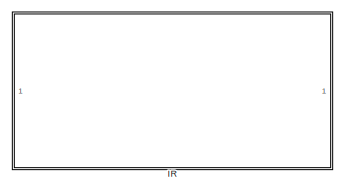
[diagram: root canvas - part 1/3, top center region]
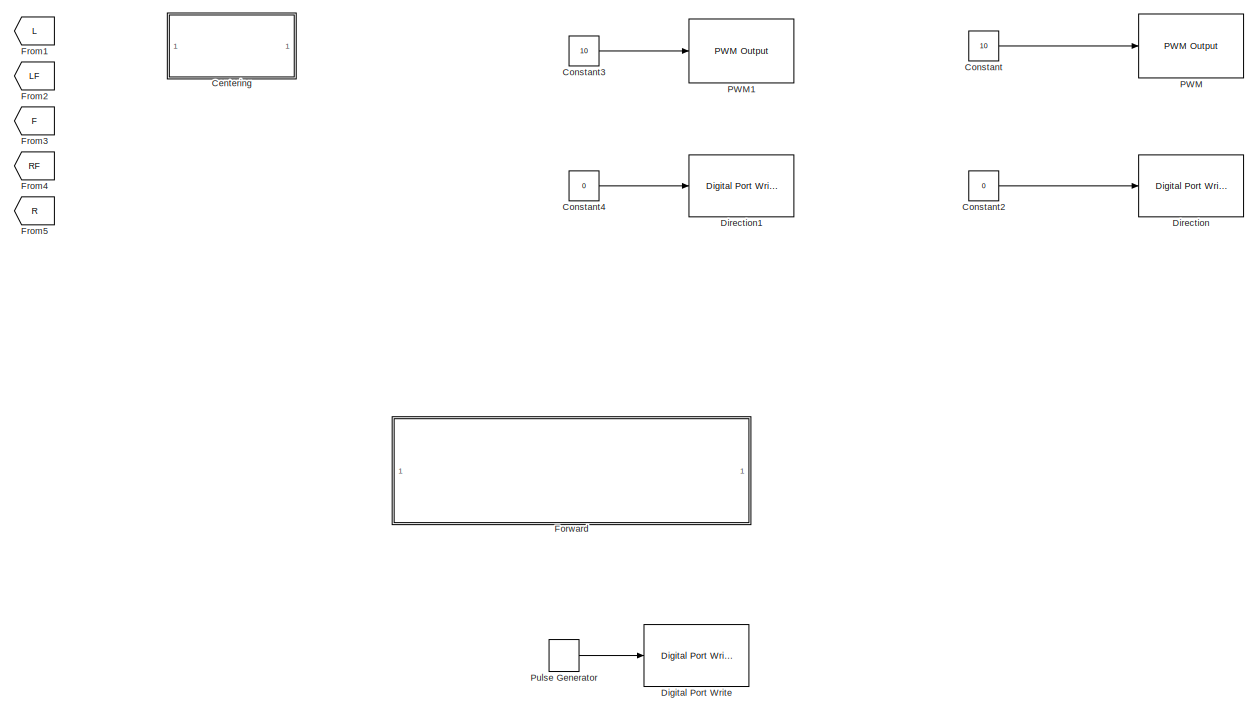
[diagram: root canvas - part 2/3, right side, full height]
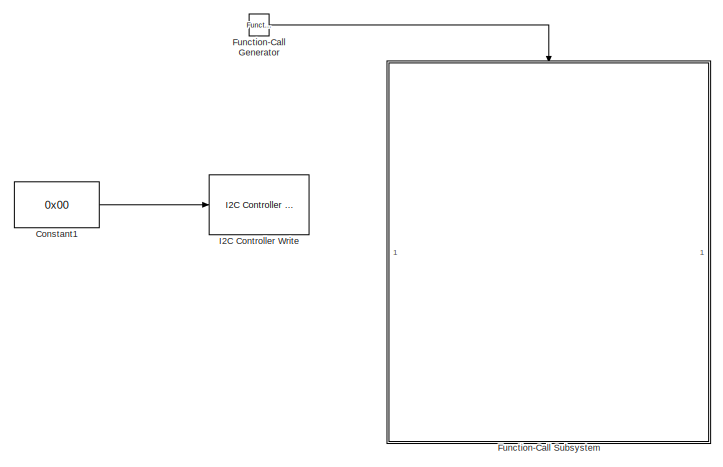
[diagram: root canvas - part 3/3, bottom left region]
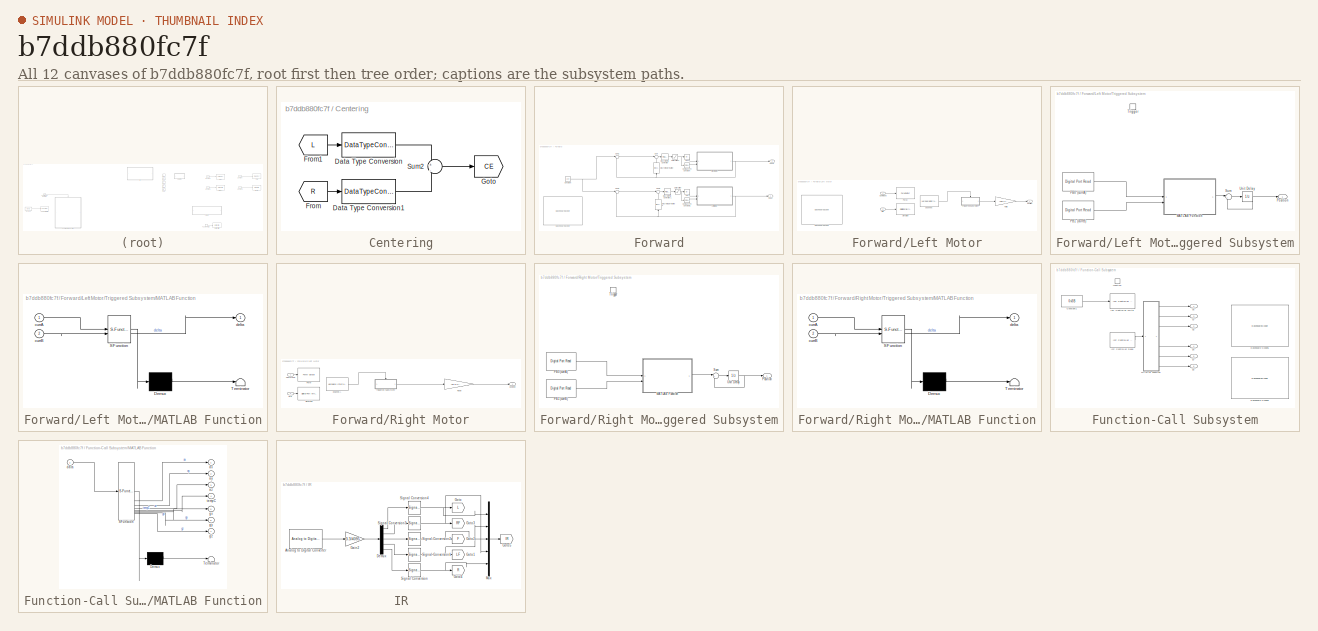
[diagram: thumbnail index - all 12 canvases of the model, root first then tree order]
MODEL slx_b7ddb880fc7f
KIND model
CONFIG AbsTol = auto
CONFIG EnableMultiTasking = on
CONFIG FixedStep = 0.02
CONFIG MaxStep = auto
CONFIG MinStep = auto
CONFIG RelTol = 1e-3
CONFIG SampleTimeConstraint = Unconstrained
CONFIG SolverName = FixedStepAuto
CONFIG StartTime = 0.0
CONFIG StopTime = inf
BLOCK [SubSystem] Centering
BLOCK [DataTypeConversion] Centering/Data Type Conversion
  OutDataTypeStr = double
  RndMeth = Floor
  SaturateOnIntegerOverflow = off
BLOCK [DataTypeConversion] Centering/Data Type Conversion1
  OutDataTypeStr = double
  RndMeth = Floor
  SaturateOnIntegerOverflow = off
BLOCK [From] Centering/From
  GotoTag = R
  TagVisibility = global
BLOCK [From] Centering/From1
  GotoTag = L
  TagVisibility = global
BLOCK [Goto] Centering/Goto
  GotoTag = CE
  TagVisibility = global
BLOCK [Sum] Centering/Sum2
  Inputs = +|-
BLOCK [Constant] Constant
  Value = 10
BLOCK [Constant] Constant1
  Commented = on
  OutDataTypeStr = uint8
  Value = 0x00
BLOCK [Constant] Constant2
  Value = 0
BLOCK [Constant] Constant3
  Value = 10
BLOCK [Constant] Constant4
  Value = 0
BLOCK [Reference] Digital Port Write  REF=stm32f4xxblockslib/Digital Port Write
  LibrarySourceBlock = stm32l4xxblockslib/Digital Port Write
  SourceBlock = stm32f4xxblockslib/Digital Port Write
  SourceType = stm32cube.blocks.DigitalPortWrite
BLOCK [Reference] Direction  REF=stm32f4xxblockslib/Digital Port Write
  LibrarySourceBlock = stm32l4xxblockslib/Digital Port Write
  SourceBlock = stm32f4xxblockslib/Digital Port Write
  SourceType = stm32cube.blocks.DigitalPortWrite
BLOCK [Reference] Direction1  REF=stm32f4xxblockslib/Digital Port Write
  LibrarySourceBlock = stm32l4xxblockslib/Digital Port Write
  SourceBlock = stm32f4xxblockslib/Digital Port Write
  SourceType = stm32cube.blocks.DigitalPortWrite
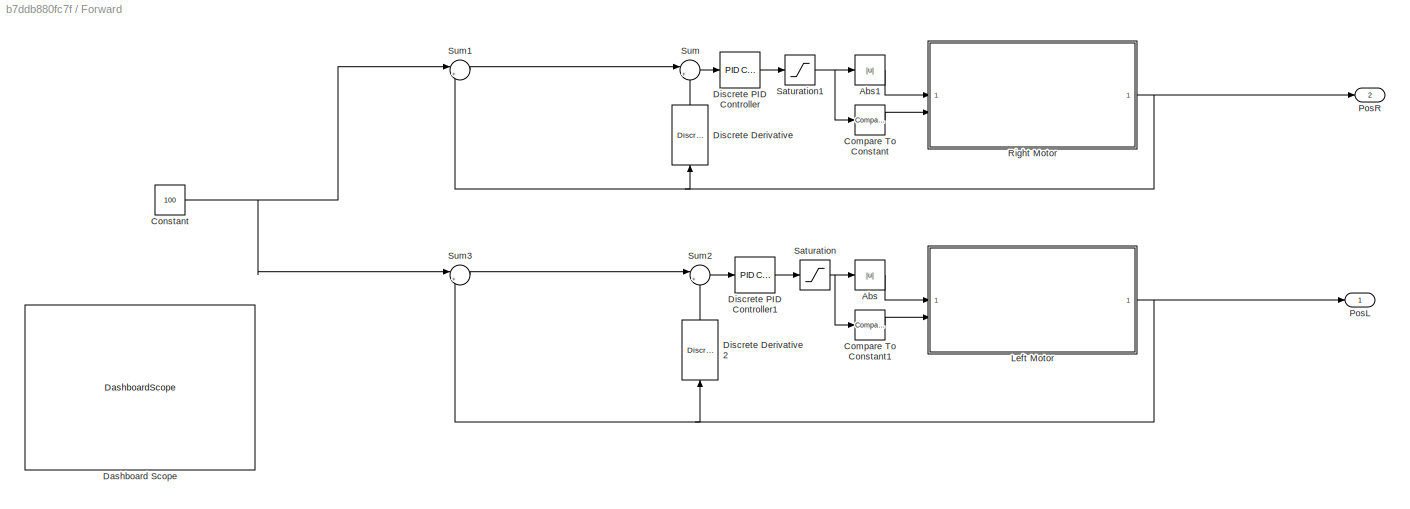
BLOCK [SubSystem] Forward
  Commented = on
BLOCK [Abs] Forward/Abs
  SaturateOnIntegerOverflow = off
BLOCK [Abs] Forward/Abs1
  SaturateOnIntegerOverflow = off
BLOCK [Reference] Forward/Compare To Constant  REF=simulink/Logic and Bit
Operations/Compare
To Constant
  SourceBlock = simulink/Logic and Bit\nOperations/Compare\nTo Constant
  SourceType = Compare To Constant
BLOCK [Reference] Forward/Compare To Constant1  REF=simulink/Logic and Bit
Operations/Compare
To Constant
  SourceBlock = simulink/Logic and Bit\nOperations/Compare\nTo Constant
  SourceType = Compare To Constant
BLOCK [Constant] Forward/Constant
  Value = 100
BLOCK [DashboardScope] Forward/Dashboard Scope
BLOCK [Reference] Forward/Discrete Derivative  REF=simulink/Discrete/Discrete Derivative
  NameLocation = right
  SourceBlock = simulink/Discrete/Discrete Derivative
  SourceType = Discrete Derivative
BLOCK [Reference] Forward/Discrete Derivative2  REF=simulink/Discrete/Discrete Derivative
  NameLocation = right
  SourceBlock = simulink/Discrete/Discrete Derivative
  SourceType = Discrete Derivative
BLOCK [Reference] Forward/Discrete PID Controller  REF=slpidlib/PID Controller
  LibrarySourceBlock = simulink/Discrete/Discrete PID Controller
  SourceBlock = slpidlib/PID Controller
  SourceType = PID 1dof
BLOCK [Reference] Forward/Discrete PID Controller1  REF=slpidlib/PID Controller
  LibrarySourceBlock = simulink/Discrete/Discrete PID Controller
  SourceBlock = slpidlib/PID Controller
  SourceType = PID 1dof
BLOCK [SubSystem] Forward/Left Motor
BLOCK [Reference] Forward/Left Motor/Channel A  REF=stm32l4xxblockslib/Hardware Interrupt
  SourceBlock = stm32l4xxblockslib/Hardware Interrupt
  SourceType = stm32cube.blocks.HardwareInterrupt
  UserDataPersistent = on
BLOCK [Inport] Forward/Left Motor/Command
BLOCK [Inport] Forward/Left Motor/DIR
  Port = 2
BLOCK [DashboardScope] Forward/Left Motor/Dashboard Scope
BLOCK [Reference] Forward/Left Motor/Direction  REF=stm32f4xxblockslib/Digital Port Write
  LibrarySourceBlock = stm32l4xxblockslib/Digital Port Write
  SourceBlock = stm32f4xxblockslib/Digital Port Write
  SourceType = stm32cube.blocks.DigitalPortWrite
BLOCK [Reference] Forward/Left Motor/PWM  REF=stm32l4xxblockslib/PWM Output
  SourceBlock = stm32l4xxblockslib/PWM Output
  SourceType = stm32cube.blocks.PWMOutput
BLOCK [Gain] Forward/Left Motor/Ratio
  Gain = (pi*3.4)/(2*7*50)
BLOCK [SubSystem] Forward/Left Motor/Triggered Subsystem
  TreatAsAtomicUnit = on
BLOCK [SubSystem] Forward/Left Motor/Triggered Subsystem/MATLAB Function
  ErrorFcn = Stateflow.Translate.translate
  PermitHierarchicalResolution = ExplicitOnly
  SFBlockType = MATLAB Function
  TreatAsAtomicUnit = on
BLOCK [Demux] Forward/Left Motor/Triggered Subsystem/MATLAB Function/ Demux 
  Outputs = 1
BLOCK [S-Function] Forward/Left Motor/Triggered Subsystem/MATLAB Function/ SFunction 
  EnableBusSupport = on
  FunctionName = sf_sfun
  PortCounts = [2 2]
  SFcnIsStateOwnerBlock = off
  SFunctionDeploymentMode = off
  Tag = Stateflow S-Function 4
BLOCK [Terminator] Forward/Left Motor/Triggered Subsystem/MATLAB Function/ Terminator 
BLOCK [Inport] Forward/Left Motor/Triggered Subsystem/MATLAB Function/currA
BLOCK [Inport] Forward/Left Motor/Triggered Subsystem/MATLAB Function/currB
  Port = 2
BLOCK [Outport] Forward/Left Motor/Triggered Subsystem/MATLAB Function/delta
BLOCK [Reference] Forward/Left Motor/Triggered Subsystem/PB0 (currA)  REF=stm32f4xxblockslib/Digital Port Read
  LibrarySourceBlock = stm32l4xxblockslib/Digital Port Read
  SourceBlock = stm32f4xxblockslib/Digital Port Read
  SourceType = stm32cube.blocks.DigitalPortRead
BLOCK [Reference] Forward/Left Motor/Triggered Subsystem/PB1 (currB)  REF=stm32f4xxblockslib/Digital Port Read
  LibrarySourceBlock = stm32l4xxblockslib/Digital Port Read
  SourceBlock = stm32f4xxblockslib/Digital Port Read
  SourceType = stm32cube.blocks.DigitalPortRead
BLOCK [Outport] Forward/Left Motor/Triggered Subsystem/Position
BLOCK [Sum] Forward/Left Motor/Triggered Subsystem/Sum
  Inputs = |++
BLOCK [TriggerPort] Forward/Left Motor/Triggered Subsystem/Trigger
  StatesWhenEnabling = held
  TriggerType = function-call
  VariantControl = (inherit)
BLOCK [UnitDelay] Forward/Left Motor/Triggered Subsystem/Unit Delay
  HasFrameUpgradeWarning = on
  SampleTime = -1
BLOCK [Outport] Forward/Left Motor/position
BLOCK [Outport] Forward/PosL
BLOCK [Outport] Forward/PosR
  Port = 2
BLOCK [SubSystem] Forward/Right Motor
BLOCK [Reference] Forward/Right Motor/Channel A  REF=stm32l4xxblockslib/Hardware Interrupt
  SourceBlock = stm32l4xxblockslib/Hardware Interrupt
  SourceType = stm32cube.blocks.HardwareInterrupt
  UserDataPersistent = on
BLOCK [Inport] Forward/Right Motor/Command
BLOCK [Inport] Forward/Right Motor/DIR
  Port = 2
BLOCK [Reference] Forward/Right Motor/Direction  REF=stm32f4xxblockslib/Digital Port Write
  LibrarySourceBlock = stm32l4xxblockslib/Digital Port Write
  SourceBlock = stm32f4xxblockslib/Digital Port Write
  SourceType = stm32cube.blocks.DigitalPortWrite
BLOCK [Reference] Forward/Right Motor/PWM  REF=stm32l4xxblockslib/PWM Output
  SourceBlock = stm32l4xxblockslib/PWM Output
  SourceType = stm32cube.blocks.PWMOutput
BLOCK [Gain] Forward/Right Motor/Ratio
  Gain = (pi*3.4)/(2*7*50)
BLOCK [SubSystem] Forward/Right Motor/Triggered Subsystem
  TreatAsAtomicUnit = on
BLOCK [SubSystem] Forward/Right Motor/Triggered Subsystem/MATLAB Function
  ErrorFcn = Stateflow.Translate.translate
  PermitHierarchicalResolution = ExplicitOnly
  SFBlockType = MATLAB Function
  TreatAsAtomicUnit = on
BLOCK [Demux] Forward/Right Motor/Triggered Subsystem/MATLAB Function/ Demux 
  Outputs = 1
BLOCK [S-Function] Forward/Right Motor/Triggered Subsystem/MATLAB Function/ SFunction 
  EnableBusSupport = on
  FunctionName = sf_sfun
  PortCounts = [2 2]
  SFcnIsStateOwnerBlock = off
  SFunctionDeploymentMode = off
  Tag = Stateflow S-Function 5
BLOCK [Terminator] Forward/Right Motor/Triggered Subsystem/MATLAB Function/ Terminator 
BLOCK [Inport] Forward/Right Motor/Triggered Subsystem/MATLAB Function/currA
BLOCK [Inport] Forward/Right Motor/Triggered Subsystem/MATLAB Function/currB
  Port = 2
BLOCK [Outport] Forward/Right Motor/Triggered Subsystem/MATLAB Function/delta
BLOCK [Reference] Forward/Right Motor/Triggered Subsystem/PB0 (currA)  REF=stm32f4xxblockslib/Digital Port Read
  LibrarySourceBlock = stm32l4xxblockslib/Digital Port Read
  SourceBlock = stm32f4xxblockslib/Digital Port Read
  SourceType = stm32cube.blocks.DigitalPortRead
BLOCK [Reference] Forward/Right Motor/Triggered Subsystem/PB1 (currB)  REF=stm32f4xxblockslib/Digital Port Read
  LibrarySourceBlock = stm32l4xxblockslib/Digital Port Read
  SourceBlock = stm32f4xxblockslib/Digital Port Read
  SourceType = stm32cube.blocks.DigitalPortRead
BLOCK [Outport] Forward/Right Motor/Triggered Subsystem/Position
BLOCK [Sum] Forward/Right Motor/Triggered Subsystem/Sum
  Inputs = |++
BLOCK [TriggerPort] Forward/Right Motor/Triggered Subsystem/Trigger
  StatesWhenEnabling = held
  TriggerType = function-call
  VariantControl = (inherit)
BLOCK [UnitDelay] Forward/Right Motor/Triggered Subsystem/Unit Delay
  HasFrameUpgradeWarning = on
  SampleTime = -1
BLOCK [Outport] Forward/Right Motor/position
BLOCK [Saturate] Forward/Saturation
  LowerLimit = -100
  UpperLimit = 100
BLOCK [Saturate] Forward/Saturation1
  LowerLimit = -99
  UpperLimit = 99
BLOCK [Sum] Forward/Sum
  Inputs = |+-
BLOCK [Sum] Forward/Sum1
  Inputs = |+-
BLOCK [Sum] Forward/Sum2
  Inputs = |+-
BLOCK [Sum] Forward/Sum3
  Inputs = |+-
BLOCK [From] From1
  GotoTag = L
  TagVisibility = global
BLOCK [From] From2
  GotoTag = LF
  TagVisibility = global
BLOCK [From] From3
  GotoTag = F
  TagVisibility = global
BLOCK [From] From4
  GotoTag = RF
  TagVisibility = global
BLOCK [From] From5
  GotoTag = R
  TagVisibility = global
BLOCK [Reference] Function-Call Generator  REF=simulink/Ports &
Subsystems/Function-Call
Generator
  Commented = on
  SourceBlock = simulink/Ports &\nSubsystems/Function-Call\nGenerator
  SourceType = Function-Call Generator
BLOCK [SubSystem] Function-Call Subsystem
  Commented = on
  TreatAsAtomicUnit = on
BLOCK [Constant] Function-Call Subsystem/Constant1
  OutDataTypeStr = uint8
  Value = 0x3B
BLOCK [DashboardScope] Function-Call Subsystem/Dashboard Scope5
BLOCK [DashboardScope] Function-Call Subsystem/Dashboard Scope6
BLOCK [Reference] Function-Call Subsystem/I2C Controller Read  REF=stm32blockslib/I2C Controller Read
  LibrarySourceBlock = stm32l4xxblockslib/I2C Controller Read
  SourceBlock = stm32blockslib/I2C Controller Read
  SourceType = stm32cube.blocks.I2CControllerRead
BLOCK [Reference] Function-Call Subsystem/I2C Controller Write  REF=stm32blockslib/I2C Controller Write
  LibrarySourceBlock = stm32l4xxblockslib/I2C Controller Write
  SourceBlock = stm32blockslib/I2C Controller Write
  SourceType = stm32cube.blocks.I2CControllerWrite
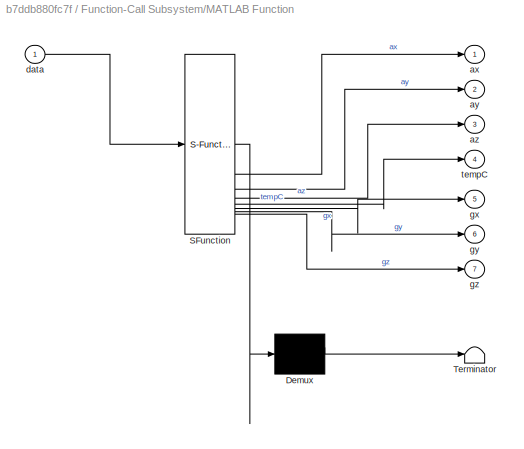
BLOCK [SubSystem] Function-Call Subsystem/MATLAB Function
  ErrorFcn = Stateflow.Translate.translate
  PermitHierarchicalResolution = ExplicitOnly
  SFBlockType = MATLAB Function
  TreatAsAtomicUnit = on
BLOCK [Demux] Function-Call Subsystem/MATLAB Function/ Demux 
  Outputs = 1
BLOCK [S-Function] Function-Call Subsystem/MATLAB Function/ SFunction 
  EnableBusSupport = on
  FunctionName = sf_sfun
  PortCounts = [1 8]
  SFcnIsStateOwnerBlock = off
  SFunctionDeploymentMode = off
  Tag = Stateflow S-Function 3
BLOCK [Terminator] Function-Call Subsystem/MATLAB Function/ Terminator 
BLOCK [Outport] Function-Call Subsystem/MATLAB Function/ax
BLOCK [Outport] Function-Call Subsystem/MATLAB Function/ay
  Port = 2
BLOCK [Outport] Function-Call Subsystem/MATLAB Function/az
  Port = 3
BLOCK [Inport] Function-Call Subsystem/MATLAB Function/data
BLOCK [Outport] Function-Call Subsystem/MATLAB Function/gx
  Port = 5
BLOCK [Outport] Function-Call Subsystem/MATLAB Function/gy
  Port = 6
BLOCK [Outport] Function-Call Subsystem/MATLAB Function/gz
  Port = 7
BLOCK [Outport] Function-Call Subsystem/MATLAB Function/tempC
  Port = 4
BLOCK [Outport] Function-Call Subsystem/ax
BLOCK [Outport] Function-Call Subsystem/ay
  Port = 3
BLOCK [Outport] Function-Call Subsystem/az
  Port = 2
BLOCK [TriggerPort] Function-Call Subsystem/function
  StatesWhenEnabling = held
  TriggerType = function-call
  VariantControl = (inherit)
BLOCK [Outport] Function-Call Subsystem/gx
  Port = 4
BLOCK [Outport] Function-Call Subsystem/gy
  Port = 5
BLOCK [Outport] Function-Call Subsystem/gz
  Port = 6
BLOCK [Reference] I2C Controller Write  REF=stm32blockslib/I2C Controller Write
  Commented = on
  LibrarySourceBlock = stm32l4xxblockslib/I2C Controller Write
  SourceBlock = stm32blockslib/I2C Controller Write
  SourceType = stm32cube.blocks.I2CControllerWrite
BLOCK [SubSystem] IR
BLOCK [Reference] IR/Analog to Digital Converter  REF=stm32f4xxblockslib/Analog to Digital Converter
  LibrarySourceBlock = stm32l4xxblockslib/Analog to Digital Converter
  SourceBlock = stm32f4xxblockslib/Analog to Digital Converter
  SourceType = stm32cube.blocks.AnalogInput
BLOCK [Demux] IR/Demux
  Outputs = 5
BLOCK [Gain] IR/Gain2
  Gain = 3.3/4095
BLOCK [Goto] IR/Goto
  GotoTag = L
  TagVisibility = global
BLOCK [Goto] IR/Goto1
  GotoTag = LF
  TagVisibility = global
BLOCK [Goto] IR/Goto2
  GotoTag = F
  TagVisibility = global
BLOCK [Goto] IR/Goto3
  GotoTag = RF
  TagVisibility = global
BLOCK [Goto] IR/Goto4
  GotoTag = R
  TagVisibility = global
BLOCK [Goto] IR/Goto5
  GotoTag = IR
  TagVisibility = global
BLOCK [Mux] IR/Mux
  DisplayOption = bar
  Inputs = 5
BLOCK [SignalConversion] IR/Signal Conversion
  OverrideOpt = off
BLOCK [SignalConversion] IR/Signal Conversion1
  OverrideOpt = off
BLOCK [SignalConversion] IR/Signal Conversion2
  OverrideOpt = off
BLOCK [SignalConversion] IR/Signal Conversion3
  OverrideOpt = off
BLOCK [SignalConversion] IR/Signal Conversion4
  OverrideOpt = off
BLOCK [Reference] PWM  REF=stm32l4xxblockslib/PWM Output
  SourceBlock = stm32l4xxblockslib/PWM Output
  SourceType = stm32cube.blocks.PWMOutput
BLOCK [Reference] PWM1  REF=stm32l4xxblockslib/PWM Output
  SourceBlock = stm32l4xxblockslib/PWM Output
  SourceType = stm32cube.blocks.PWMOutput
BLOCK [DiscretePulseGenerator] Pulse Generator
  PulseType = Time based
  PulseWidth = 50
LINE Centering/Data Type Conversion1:1 -> Centering/Sum2:2
LINE Centering/Data Type Conversion:1 -> Centering/Sum2:1
LINE Centering/From1:1 -> Centering/Data Type Conversion:1
LINE Centering/From:1 -> Centering/Data Type Conversion1:1
LINE Centering/Sum2:1 -> Centering/Goto:1
LINE Constant1:1 -> I2C Controller Write:1
LINE Constant2:1 -> Direction:1
LINE Constant3:1 -> PWM1:1
LINE Constant4:1 -> Direction1:1
LINE Constant:1 -> PWM:1
LINE Forward/Abs1:1 -> Forward/Right Motor:1
LINE Forward/Abs:1 -> Forward/Left Motor:1
LINE Forward/Compare To Constant1:1 -> Forward/Left Motor:2
LINE Forward/Compare To Constant:1 -> Forward/Right Motor:2
NET Forward/Constant:1 -> Forward/Sum1:1, Forward/Sum3:1
LINE Forward/Discrete Derivative2:1 -> Forward/Sum2:2
LINE Forward/Discrete Derivative:1 -> Forward/Sum:2
LINE Forward/Discrete PID Controller1:1 -> Forward/Saturation:1
LINE Forward/Discrete PID Controller:1 -> Forward/Saturation1:1
LINE Forward/Left Motor/Channel A:1 -> Forward/Left Motor/Triggered Subsystem:trigger
LINE Forward/Left Motor/Command:1 -> Forward/Left Motor/PWM:1
LINE Forward/Left Motor/DIR:1 -> Forward/Left Motor/Direction:1
LINE Forward/Left Motor/Ratio:1 -> Forward/Left Motor/position:1
LINE Forward/Left Motor/Triggered Subsystem/MATLAB Function:1 -> Forward/Left Motor/Triggered Subsystem/Sum:1
LINE Forward/Left Motor/Triggered Subsystem/PB0 (currA):1 -> Forward/Left Motor/Triggered Subsystem/MATLAB Function:1
LINE Forward/Left Motor/Triggered Subsystem/PB1 (currB):1 -> Forward/Left Motor/Triggered Subsystem/MATLAB Function:2
LINE Forward/Left Motor/Triggered Subsystem/Sum:1 -> Forward/Left Motor/Triggered Subsystem/Unit Delay:1
NET Forward/Left Motor/Triggered Subsystem/Unit Delay:1 -> Forward/Left Motor/Triggered Subsystem/Position:1, Forward/Left Motor/Triggered Subsystem/Sum:2
LINE Forward/Left Motor/Triggered Subsystem:1 -> Forward/Left Motor/Ratio:1
NET Forward/Left Motor:1 -> Forward/Discrete Derivative2:1, Forward/PosL:1, Forward/Sum3:2
LINE Forward/Right Motor/Channel A:1 -> Forward/Right Motor/Triggered Subsystem:trigger
LINE Forward/Right Motor/Command:1 -> Forward/Right Motor/PWM:1
LINE Forward/Right Motor/DIR:1 -> Forward/Right Motor/Direction:1
LINE Forward/Right Motor/Ratio:1 -> Forward/Right Motor/position:1
LINE Forward/Right Motor/Triggered Subsystem/MATLAB Function:1 -> Forward/Right Motor/Triggered Subsystem/Sum:1
LINE Forward/Right Motor/Triggered Subsystem/PB0 (currA):1 -> Forward/Right Motor/Triggered Subsystem/MATLAB Function:1
LINE Forward/Right Motor/Triggered Subsystem/PB1 (currB):1 -> Forward/Right Motor/Triggered Subsystem/MATLAB Function:2
LINE Forward/Right Motor/Triggered Subsystem/Sum:1 -> Forward/Right Motor/Triggered Subsystem/Unit Delay:1
NET Forward/Right Motor/Triggered Subsystem/Unit Delay:1 -> Forward/Right Motor/Triggered Subsystem/Position:1, Forward/Right Motor/Triggered Subsystem/Sum:2
LINE Forward/Right Motor/Triggered Subsystem:1 -> Forward/Right Motor/Ratio:1
NET Forward/Right Motor:1 -> Forward/Discrete Derivative:1, Forward/PosR:1, Forward/Sum1:2
NET Forward/Saturation1:1 -> Forward/Abs1:1, Forward/Compare To Constant:1
NET Forward/Saturation:1 -> Forward/Abs:1, Forward/Compare To Constant1:1
LINE Forward/Sum1:1 -> Forward/Sum:1
LINE Forward/Sum2:1 -> Forward/Discrete PID Controller1:1
LINE Forward/Sum3:1 -> Forward/Sum2:1
LINE Forward/Sum:1 -> Forward/Discrete PID Controller:1
LINE Function-Call Generator:1 -> Function-Call Subsystem:trigger
LINE Function-Call Subsystem/Constant1:1 -> Function-Call Subsystem/I2C Controller Write:1
LINE Function-Call Subsystem/I2C Controller Read:1 -> Function-Call Subsystem/MATLAB Function:1
LINE Function-Call Subsystem/MATLAB Function:1 -> Function-Call Subsystem/ax:1
LINE Function-Call Subsystem/MATLAB Function:2 -> Function-Call Subsystem/ay:1
LINE Function-Call Subsystem/MATLAB Function:3 -> Function-Call Subsystem/az:1
LINE Function-Call Subsystem/MATLAB Function:5 -> Function-Call Subsystem/gx:1
LINE Function-Call Subsystem/MATLAB Function:6 -> Function-Call Subsystem/gy:1
LINE Function-Call Subsystem/MATLAB Function:7 -> Function-Call Subsystem/gz:1
LINE IR/Analog to Digital Converter:1 -> IR/Gain2:1
LINE IR/Demux:1 -> IR/Signal Conversion4:1
LINE IR/Demux:2 -> IR/Signal Conversion3:1
LINE IR/Demux:3 -> IR/Signal Conversion2:1
LINE IR/Demux:4 -> IR/Signal Conversion1:1
LINE IR/Demux:5 -> IR/Signal Conversion:1
LINE IR/Gain2:1 -> IR/Demux:1
LINE IR/Mux:1 -> IR/Goto5:1
NET IR/Signal Conversion1:1 -> IR/Goto1:1, IR/Mux:2
NET IR/Signal Conversion2:1 -> IR/Goto2:1, IR/Mux:3
NET IR/Signal Conversion3:1 -> IR/Goto3:1, IR/Mux:4
NET IR/Signal Conversion4:1 -> IR/Goto:1, IR/Mux:1
NET IR/Signal Conversion:1 -> IR/Goto4:1, IR/Mux:5
LINE Pulse Generator:1 -> Digital Port Write:1
note: NET lines group one-source signal fan-out (src -> all destinations, sorted); 1:1 wires keep LINE
CHART Function-Call
Subsystem/MATLAB Function states=1 transitions=1
  STATE_LABEL 'eML_blk_kernel()'
  STATE_LABEL "SCRIPT:\nfunction [ax, ay, az, tempC, gx, gy, gz] = decodeMPU(data)\n%#codegen\n% data must be [14x1] uint8 externally defined\n\nax = typecast([data(1), data(2)], 'int16');\nay = typecast([data(3), data(4)], 'int16');\naz = typecast([data(5), data(6)], 'int16');\n\nt = typecast([data(7), data(8)], 'int16');\ntempC = double(t) / 333.87 + 21.0;\n\ngx = typecast([data(9),  data(10)], 'int16');\ngy = typecast([da...<+79ch>"
CHART Forward/Left Motor/Triggered
Subsystem/MATLAB Function states=1 transitions=1
  STATE_LABEL 'eML_blk_kernel()'
  STATE_LABEL 'SCRIPT:\nfunction delta = decodeSimple(currA, currB)\n    if (currA == currB)\n        delta = +1;   % Forward\n    else\n        delta = -1;   % Reverse\n    end\nend\n'
CHART Forward/Right Motor/Triggered
Subsystem/MATLAB Function states=1 transitions=1
  STATE_LABEL 'eML_blk_kernel()'
  STATE_LABEL 'SCRIPT:\nfunction delta = decodeSimple(currA, currB)\n    if (currA == currB)\n        delta = -1;   % Forward\n    else\n        delta = +1;   % Reverse\n    end\nend\n'
CHART  states=0 transitions=0
CHART  states=0 transitions=0
CHART  states=0 transitions=0
